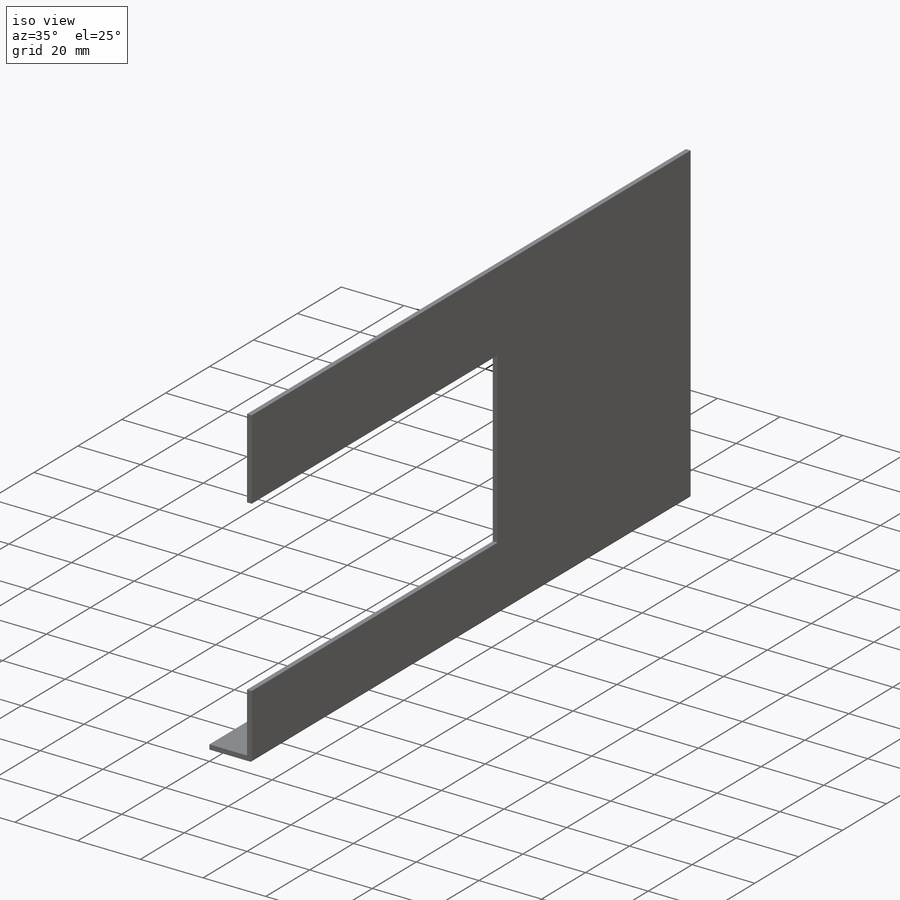
[diagram: iso view]
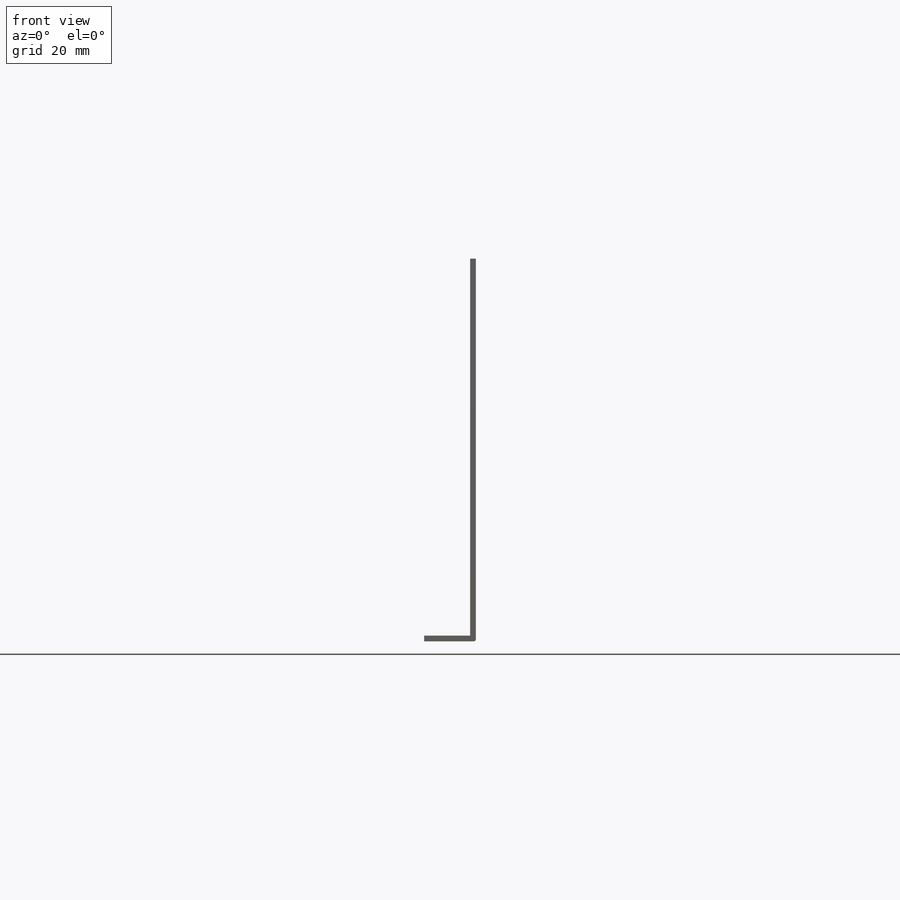
[diagram: front view]
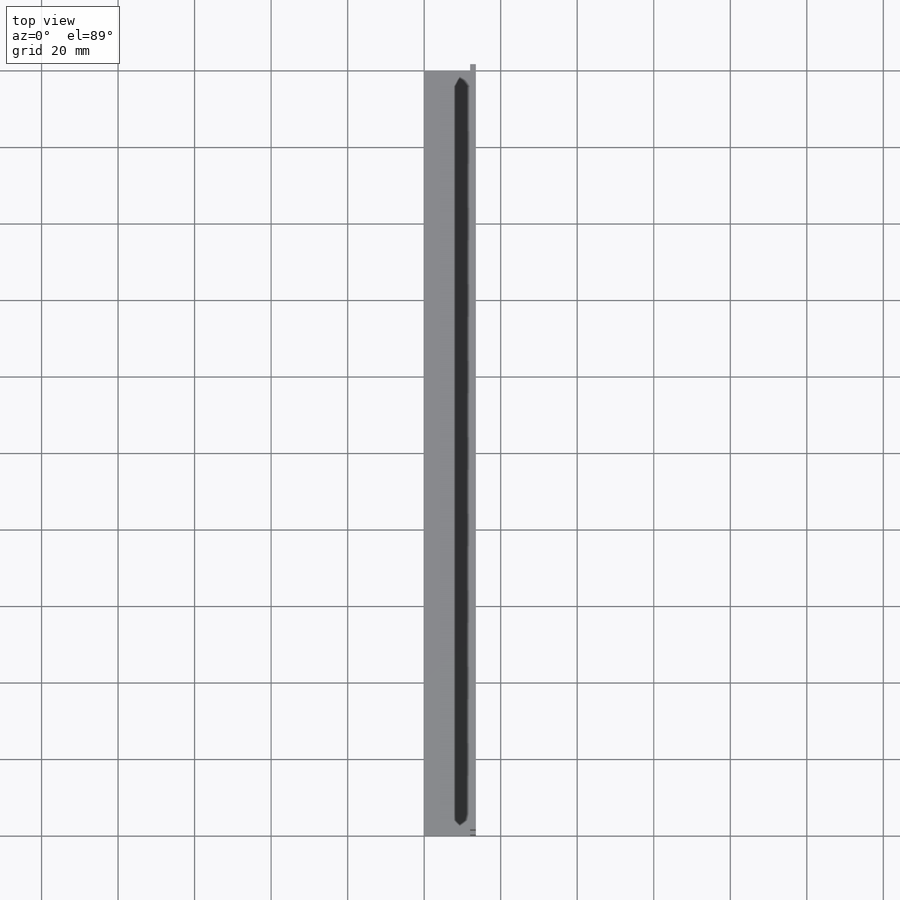
[diagram: top view]
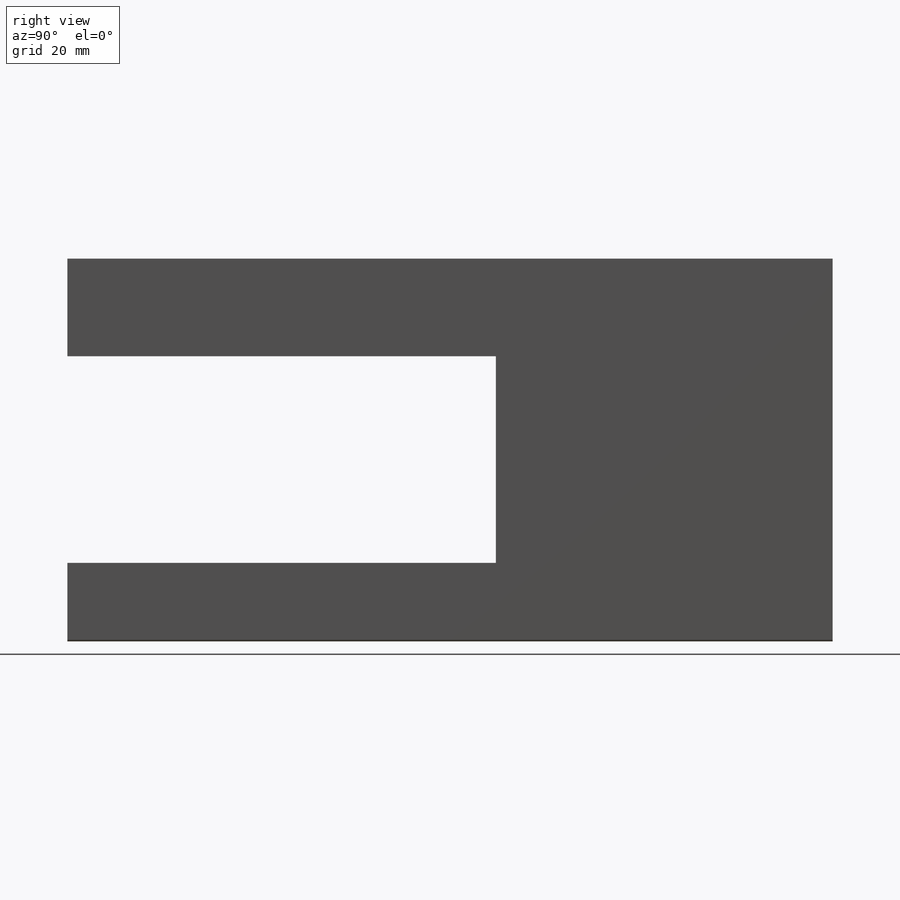
[diagram: right view]
SOLIDWORKS PART (.sldprt)
format: sldprt  version: not decoded by parser v0  size: 138,240 bytes
history: native  units: mm
features: sketch x5, material x1, extrude x1, fillet x1, cut_extrude x1, hole x1 (+13 scaffold rows collapsed)
feature tree (23):
  scaffold x13  (default folders/planes/origin — collapsed)
  material  "Material <not specified>"
  sketch  "Sketch1"  dims[D1=100.0mm]
  extrude  "Extrude1"  Depth=200mm
  sketch  "Sketch2"  dims[D1=19.0mm]
  fillet  "Fillet1"  Radius=0.5mm
  cut_extrude  "Cut-Extrude2"  Depth=112mm
  sketch  "Sketch3"
  hole  "CSK for M3 Countersunk Flat Head Screw1"  Diameter=3.4mm Depth=1.5mm
  sketch  "3DSketch1"
  sketch  "Sketch5"  dims[hole-wizard template sketch: 40 standard entries collapsed; hole parameters kept: c13.Hole Depth=1.5mm c13.Near C'Sink Dia.=6.3mm c13.D4=~33.297463mm c13.Near C'Sink Angle=90.0deg c14.D5=~14.816244mm c14.Drill Angle=118.0deg]
decode coverage: 7 of 9 modeling features carry decoded parameters
note: ~ marks probable driven/reference dimensions
note: suppression state not decoded; provenance and decode notes live in map.json
